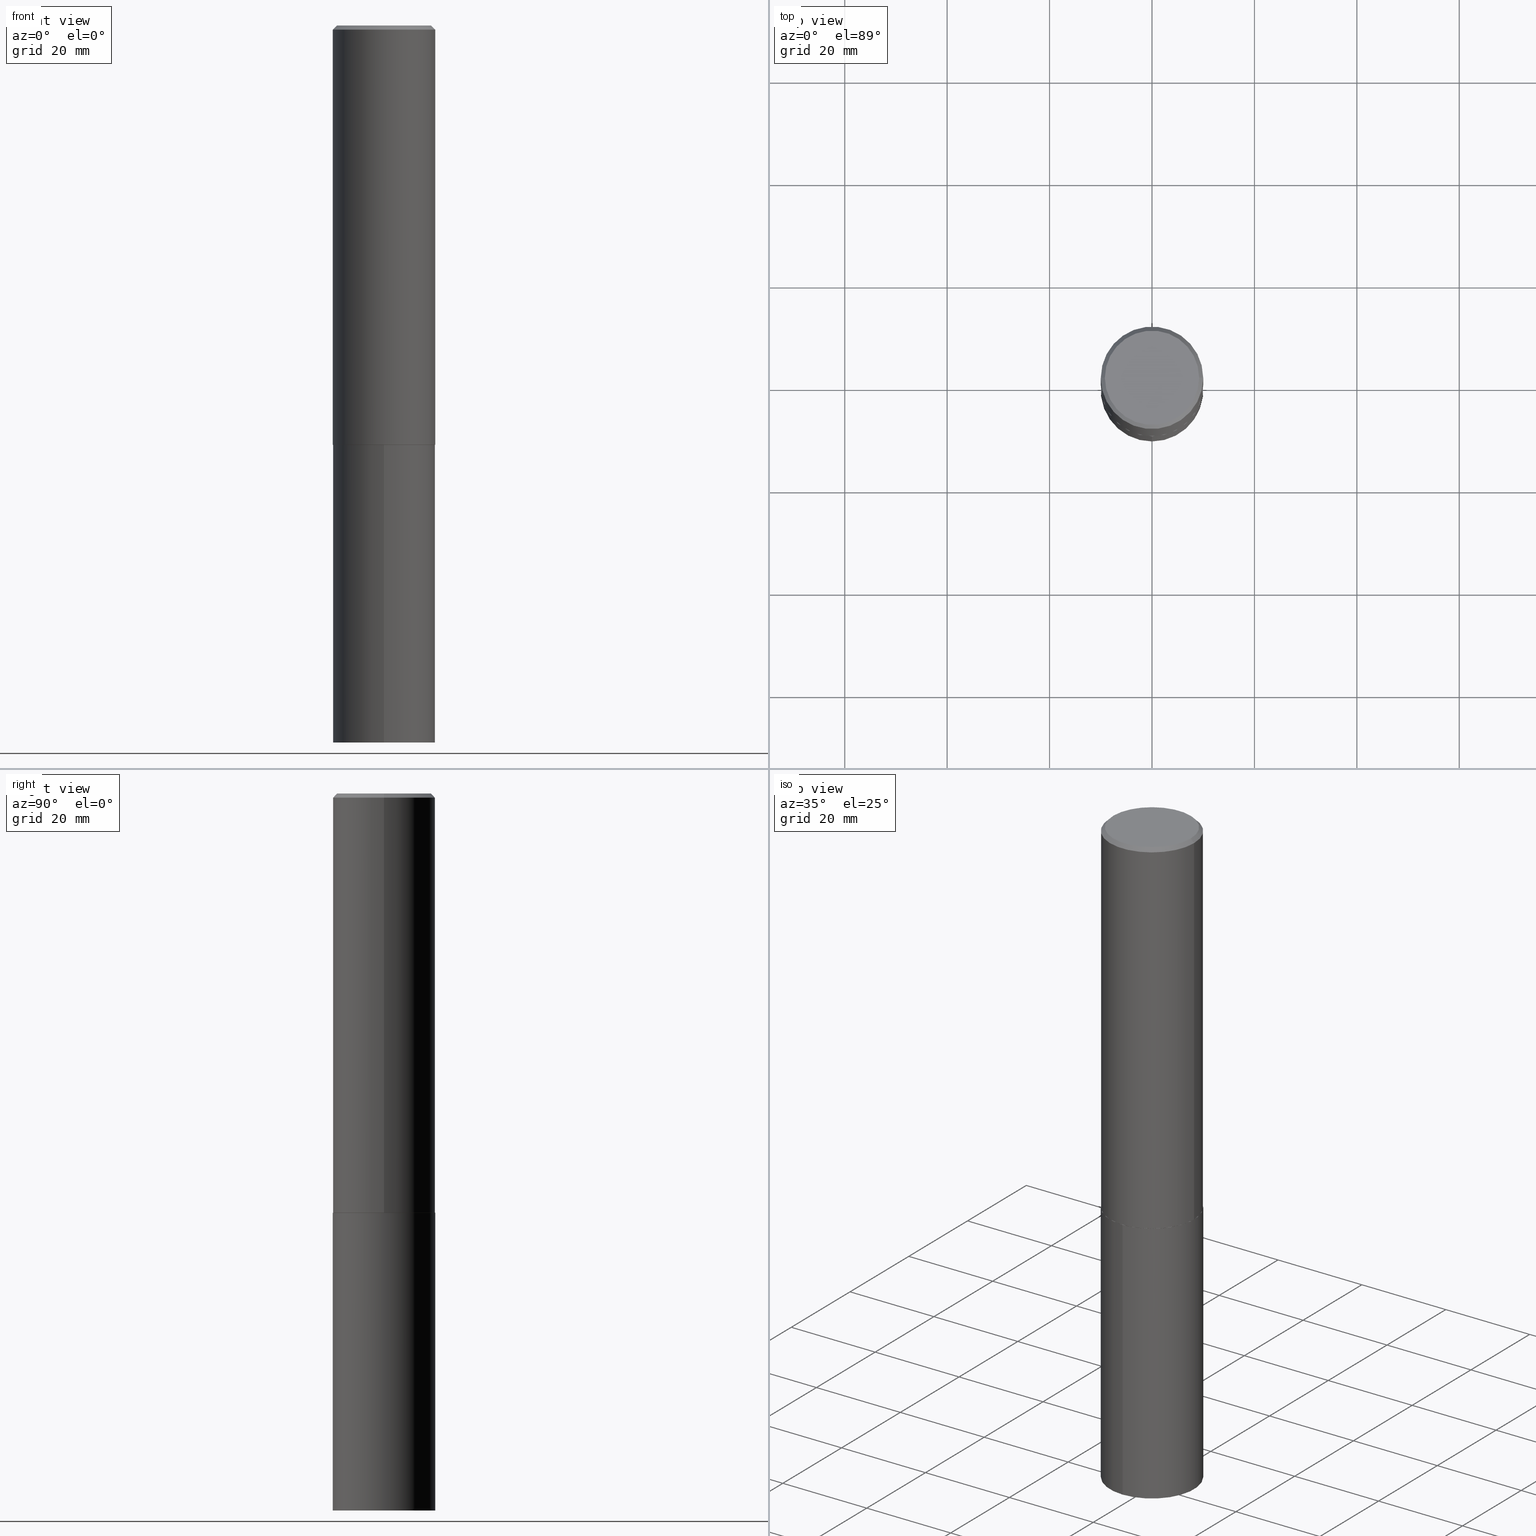
[diagram: canonical four-view strip — front | top / right | iso, engineering-drawing reading convention]
A machine part, canonical four-view strip (front | top / right | iso — engineering-drawing reading convention). The complete STEP part file that produces these views, byte-faithful:
ISO-10303-21;
HEADER;
FILE_DESCRIPTION (( 'STEP AP203' ),
    '1' );
FILE_NAME ('67814.STEP',
    '2024-04-23T12:54:18',
    ( '' ),
    ( '' ),
    'SwSTEP 2.0',
    'SolidWorks 2023',
    '' );
FILE_SCHEMA (( 'CONFIG_CONTROL_DESIGN' ));
ENDSEC;

DATA;
#1 = CARTESIAN_POINT ( 'NONE',  ( 0.3937000000000000499, -2.810086853561501142E-15, -0.03125000000000018735 ) ) ;
#2 = CARTESIAN_POINT ( 'NONE',  ( 0.000000000000000000, 0.000000000000000000, 0.000000000000000000 ) ) ;
#3 = ORIENTED_EDGE ( 'NONE', *, *, #173, .T. ) ;
#4 = EDGE_CURVE ( 'NONE', #285, #114, #291, .T. ) ;
#5 = CONICAL_SURFACE ( 'NONE', #365, 0.3937000000000000499, 0.7853981633974447263 ) ;
#6 = LENGTH_MEASURE_WITH_UNIT ( LENGTH_MEASURE( 0.02539999999999999897 ), #58 );
#7 = EDGE_LOOP ( 'NONE', ( #201, #110, #126, #357 ) ) ;
#8 = EDGE_CURVE ( 'NONE', #124, #350, #159, .T. ) ;
#9 = FACE_OUTER_BOUND ( 'NONE', #265, .T. ) ;
#10 = AXIS2_PLACEMENT_3D ( 'NONE', #335, #279, #137 ) ;
#11 = ORIENTED_EDGE ( 'NONE', *, *, #267, .F. ) ;
#12 = DIRECTION ( 'NONE',  ( -6.982962677686265133E-15, -1.000000000000000000, 4.163344669033674845E-15 ) ) ;
#13 = ORIENTED_EDGE ( 'NONE', *, *, #346, .F. ) ;
#14 = CC_DESIGN_PERSON_AND_ORGANIZATION_ASSIGNMENT ( #88, #182, ( #232 ) ) ;
#15 = SECURITY_CLASSIFICATION_LEVEL ( 'unclassified' ) ;
#16 = ORIENTED_EDGE ( 'NONE', *, *, #132, .F. ) ;
#17 = APPROVAL_ROLE ( '' ) ;
#18 = ORIENTED_EDGE ( 'NONE', *, *, #8, .T. ) ;
#19 = CYLINDRICAL_SURFACE ( 'NONE', #80, 0.3937000000000002164 ) ;
#20 = AXIS2_PLACEMENT_3D ( 'NONE', #166, #360, #193 ) ;
#21 = DIRECTION ( 'NONE',  ( -2.445668549663379467E-29, 3.491195294813608803E-15, 1.000000000000000000 ) ) ;
#22 = DIRECTION ( 'NONE',  ( 1.000000000000000000, -6.982962677686266711E-15, 0.000000000000000000 ) ) ;
#23 = UNCERTAINTY_MEASURE_WITH_UNIT (LENGTH_MEASURE( 1.000000000000000082E-05 ), #54, 'distance_accuracy_value', 'NONE');
#24 = DIRECTION ( 'NONE',  ( -1.000000000000000000, 6.982962677686265922E-15, 0.000000000000000000 ) ) ;
#25 = DIRECTION ( 'NONE',  ( -2.445468806185136597E-29, 3.491481338843145583E-15, 1.000000000000000000 ) ) ;
#26 = CIRCLE ( 'NONE', #10, 0.3932000000000008821 ) ;
#27 = LOCAL_TIME ( 8, 54, 18.00000000000000000, #319 ) ;
#28 = CC_DESIGN_DATE_AND_TIME_ASSIGNMENT ( #297, #65, ( #91 ) ) ;
#29 = DIRECTION ( 'NONE',  ( -0.7071067811865450192, 2.468850131082230634E-15, -0.7071067811865500152 ) ) ;
#30 = EDGE_LOOP ( 'NONE', ( #270, #326, #188, #348 ) ) ;
#31 = AXIS2_PLACEMENT_3D ( 'NONE', #163, #21, #100 ) ;
#32 = CC_DESIGN_PERSON_AND_ORGANIZATION_ASSIGNMENT ( #123, #63, ( #199 ) ) ;
#33 = DIRECTION ( 'NONE',  ( 1.000000000000000000, -6.982962677686266711E-15, 4.876176775795935793E-29 ) ) ;
#34 = ORIENTED_EDGE ( 'NONE', *, *, #135, .T. ) ;
#35 = CLOSED_SHELL ( 'NONE', ( #313, #281, #296, #179, #227, #168, #162, #103 ) ) ;
#36 = ORGANIZATION ( 'UNSPECIFIED', 'UNSPECIFIED', '' ) ;
#37 = PERSON_AND_ORGANIZATION ( #354, #36 ) ;
#38 = VERTEX_POINT ( 'NONE', #322 ) ;
#39 = PERSON_AND_ORGANIZATION_ROLE ( 'classification_officer' ) ;
#40 = VERTEX_POINT ( 'NONE', #62 ) ;
#41 = DIRECTION ( 'NONE',  ( 1.000000000000000000, 0.000000000000000000, 0.000000000000000000 ) ) ;
#42 = CARTESIAN_POINT ( 'NONE',  ( 7.881256868573458543E-29, -1.125234605882368832E-14, -3.222799999999999887 ) ) ;
#43 = MECHANICAL_CONTEXT ( 'NONE', #257, 'mechanical' ) ;
#44 = LOCAL_TIME ( 8, 54, 18.00000000000000000, #85 ) ;
#45 = DIRECTION ( 'NONE',  ( -2.445468806185136597E-29, 3.491481338843145583E-15, 1.000000000000000000 ) ) ;
#46 = EDGE_CURVE ( 'NONE', #350, #285, #150, .T. ) ;
#47 = CARTESIAN_POINT ( 'NONE',  ( 0.3937000000000000499, -2.858301198043932317E-15, -0.03125000000000018735 ) ) ;
#48 = DIRECTION ( 'NONE',  ( 1.000000000000000000, -6.982962677686268288E-15, 0.000000000000000000 ) ) ;
#49 = CIRCLE ( 'NONE', #264, 0.3937000000000000499 ) ;
#50 = LINE ( 'NONE', #99, #122 ) ;
#51 = DIRECTION ( 'NONE',  ( 0.7071067811852919105, -2.468850131069105172E-15, 0.7071067811878031240 ) ) ;
#52 = ADVANCED_FACE ( 'NONE', ( #353 ), #268, .T. ) ;
#53 = CARTESIAN_POINT ( 'NONE',  ( 7.881256868573458543E-29, -1.125234605882368832E-14, -3.222799999999999887 ) ) ;
#54 =( CONVERSION_BASED_UNIT ( 'INCH', #6 ) LENGTH_UNIT ( ) NAMED_UNIT ( #287 ) );
#55 = VECTOR ( 'NONE', #57, 39.37007874015748143 ) ;
#56 = CC_DESIGN_PERSON_AND_ORGANIZATION_ASSIGNMENT ( #37, #119, ( #323 ) ) ;
#57 = DIRECTION ( 'NONE',  ( -2.445668549663379467E-29, 3.491195294813608409E-15, 1.000000000000000000 ) ) ;
#58 =( LENGTH_UNIT ( ) NAMED_UNIT ( * ) SI_UNIT ( $, .METRE. ) );
#59 = EDGE_CURVE ( 'NONE', #350, #118, #156, .T. ) ;
#60 = AXIS2_PLACEMENT_3D ( 'NONE', #75, #244, #48 ) ;
#61 = DIRECTION ( 'NONE',  ( -2.445668549663379467E-29, 3.491195294813608409E-15, 1.000000000000000000 ) ) ;
#62 = CARTESIAN_POINT ( 'NONE',  ( 0.3932000000000008821, -1.399804698368993800E-14, -3.222800000000000331 ) ) ;
#63 = PERSON_AND_ORGANIZATION_ROLE ( 'creator' ) ;
#64 = DIRECTION ( 'NONE',  ( -2.445468806185136597E-29, 3.491481338843145583E-15, 1.000000000000000000 ) ) ;
#65 = DATE_TIME_ROLE ( 'classification_date' ) ;
#66 = VERTEX_POINT ( 'NONE', #154 ) ;
#67 = PERSON_AND_ORGANIZATION ( #354, #36 ) ;
#68 = VERTEX_POINT ( 'NONE', #328 ) ;
#69 = ADVANCED_FACE ( 'NONE', ( #187 ), #190, .T. ) ;
#70 = AXIS2_PLACEMENT_3D ( 'NONE', #301, #249, #251 ) ;
#71 = ORIENTED_EDGE ( 'NONE', *, *, #111, .F. ) ;
#72 = DIRECTION ( 'NONE',  ( 6.982962677686265922E-15, 1.000000000000000000, -3.491195294813608409E-15 ) ) ;
#73 = CARTESIAN_POINT ( 'NONE',  ( 7.880034134170364621E-29, -1.125060031815426445E-14, -3.222299999999999276 ) ) ;
#74 = AXIS2_PLACEMENT_3D ( 'NONE', #198, #61, #139 ) ;
#75 = CARTESIAN_POINT ( 'NONE',  ( 7.881256868573459664E-29, -1.125234605882368990E-14, -3.222800000000000331 ) ) ;
#76 = CARTESIAN_POINT ( 'NONE',  ( -0.3624500000000000499, 2.585529218446811143E-15, 4.818985154626951724E-18 ) ) ;
#77 = FACE_OUTER_BOUND ( 'NONE', #109, .T. ) ;
#78 = CARTESIAN_POINT ( 'NONE',  ( 7.642090019328597407E-31, -1.091087918388489527E-16, -0.03125000000000018735 ) ) ;
#79 = CLOSED_SHELL ( 'NONE', ( #69, #320, #52, #186 ) ) ;
#80 = AXIS2_PLACEMENT_3D ( 'NONE', #336, #127, #247 ) ;
#81 = ORIENTED_EDGE ( 'NONE', *, *, #46, .T. ) ;
#82 = DIRECTION ( 'NONE',  ( -2.445468806185136597E-29, 3.491481338843145583E-15, 1.000000000000000000 ) ) ;
#83 = APPROVAL_PERSON_ORGANIZATION ( #153, #302, #17 ) ;
#84 = LINE ( 'NONE', #317, #170 ) ;
#85 = COORDINATED_UNIVERSAL_TIME_OFFSET ( 5, 0, .BEHIND. ) ;
#86 = ORIENTED_EDGE ( 'NONE', *, *, #273, .F. ) ;
#87 = EDGE_CURVE ( 'NONE', #118, #114, #280, .T. ) ;
#88 = PERSON_AND_ORGANIZATION ( #354, #36 ) ;
#89 = EDGE_LOOP ( 'NONE', ( #86, #106, #34, #213 ) ) ;
#90 = AXIS2_PLACEMENT_3D ( 'NONE', #53, #277, #72 ) ;
#91 = SECURITY_CLASSIFICATION ( '', '', #15 ) ;
#92 = CALENDAR_DATE ( 2024, 23, 4 ) ;
#93 = EDGE_LOOP ( 'NONE', ( #189, #71 ) ) ;
#94 = COORDINATED_UNIVERSAL_TIME_OFFSET ( 5, 0, .BEHIND. ) ;
#95 = CC_DESIGN_DATE_AND_TIME_ASSIGNMENT ( #151, #149, ( #199 ) ) ;
#96 = ORIENTED_EDGE ( 'NONE', *, *, #111, .T. ) ;
#97 = ORIENTED_EDGE ( 'NONE', *, *, #161, .T. ) ;
#98 = VECTOR ( 'NONE', #134, 39.37007874015748143 ) ;
#99 = CARTESIAN_POINT ( 'NONE',  ( 0.3937000000000003830, -1.399979272435935082E-14, -3.222299999999999276 ) ) ;
#100 = DIRECTION ( 'NONE',  ( -6.982962677686265133E-15, -1.000000000000000000, 2.775563112689116301E-15 ) ) ;
#101 = DIRECTION ( 'NONE',  ( -1.000000000000000000, 6.982962677686265922E-15, -4.876176775795935793E-29 ) ) ;
#102 = DIRECTION ( 'NONE',  ( 2.445468806185136597E-29, -3.491481338843145583E-15, -1.000000000000000000 ) ) ;
#103 = ADVANCED_FACE ( 'NONE', ( #77 ), #338, .F. ) ;
#104 = CARTESIAN_POINT ( 'NONE',  ( -1.178467787315321927E-46, 1.682539673960461744E-32, 4.818985154644842843E-18 ) ) ;
#105 = DIRECTION ( 'NONE',  ( -2.445468806185136597E-29, 3.491481338843145583E-15, 1.000000000000000000 ) ) ;
#106 = ORIENTED_EDGE ( 'NONE', *, *, #222, .T. ) ;
#107 = DIRECTION ( 'NONE',  ( -2.445468806185136597E-29, 3.491481338843145583E-15, 1.000000000000000000 ) ) ;
#108 = VECTOR ( 'NONE', #332, 39.37007874015748143 ) ;
#109 = EDGE_LOOP ( 'NONE', ( #261, #271 ) ) ;
#110 = ORIENTED_EDGE ( 'NONE', *, *, #273, .T. ) ;
#111 = EDGE_CURVE ( 'NONE', #124, #40, #26, .T. ) ;
#112 = PLANE ( 'NONE',  #74 ) ;
#113 =( NAMED_UNIT ( * ) SI_UNIT ( $, .STERADIAN. ) SOLID_ANGLE_UNIT ( ) );
#114 = VERTEX_POINT ( 'NONE', #47 ) ;
#115 = CIRCLE ( 'NONE', #31, 0.3937000000000000499 ) ;
#116 = CC_DESIGN_PERSON_AND_ORGANIZATION_ASSIGNMENT ( #274, #39, ( #91 ) ) ;
#117 = ORIENTED_EDGE ( 'NONE', *, *, #205, .T. ) ;
#118 = VERTEX_POINT ( 'NONE', #195 ) ;
#119 = PERSON_AND_ORGANIZATION_ROLE ( 'design_owner' ) ;
#120 = PRODUCT_DEFINITION_SHAPE ( 'NONE', 'NONE',  #199 ) ;
#121 = VERTEX_POINT ( 'NONE', #76 ) ;
#122 = VECTOR ( 'NONE', #51, 39.37007874015748143 ) ;
#123 = PERSON_AND_ORGANIZATION ( #354, #36 ) ;
#124 = VERTEX_POINT ( 'NONE', #160 ) ;
#125 = CALENDAR_DATE ( 2024, 23, 4 ) ;
#126 = ORIENTED_EDGE ( 'NONE', *, *, #307, .F. ) ;
#127 = DIRECTION ( 'NONE',  ( -2.445468806185136597E-29, 3.491481338843145583E-15, 1.000000000000000000 ) ) ;
#128 = AXIS2_PLACEMENT_3D ( 'NONE', #298, #45, #214 ) ;
#129 = CIRCLE ( 'NONE', #340, 0.3937000000000000499 ) ;
#130 = CC_DESIGN_APPROVAL ( #363, ( #91 ) ) ;
#131 = DIRECTION ( 'NONE',  ( 1.000000000000000000, -6.982962677686265922E-15, 0.000000000000000000 ) ) ;
#132 = EDGE_CURVE ( 'NONE', #68, #121, #220, .T. ) ;
#133 = CARTESIAN_POINT ( 'NONE',  ( 2.797406750687620888E-15, 0.3936999999999807875, -5.511800000000000921 ) ) ;
#134 = DIRECTION ( 'NONE',  ( -2.445668549663379467E-29, 3.491195294813608409E-15, 1.000000000000000000 ) ) ;
#135 = EDGE_CURVE ( 'NONE', #234, #66, #246, .T. ) ;
#136 = AXIS2_PLACEMENT_3D ( 'NONE', #169, #25, #131 ) ;
#137 = DIRECTION ( 'NONE',  ( 1.000000000000000000, -6.982962677686268288E-15, 0.000000000000000000 ) ) ;
#138 = FACE_OUTER_BOUND ( 'NONE', #184, .T. ) ;
#139 = DIRECTION ( 'NONE',  ( -6.982962677686265922E-15, -1.000000000000000000, 3.491195294813608409E-15 ) ) ;
#140 = DIRECTION ( 'NONE',  ( 1.000000000000000000, -6.982962677686266711E-15, 0.000000000000000000 ) ) ;
#141 = AXIS2_PLACEMENT_3D ( 'NONE', #236, #64, #152 ) ;
#142 = ORIENTED_EDGE ( 'NONE', *, *, #222, .F. ) ;
#143 = CARTESIAN_POINT ( 'NONE',  ( 2.797406750687592884E-15, 0.3936999999999887812, -3.222800000000001663 ) ) ;
#144 = DIRECTION ( 'NONE',  ( 0.7071067811865450192, -7.319954787623246579E-15, -0.7071067811865500152 ) ) ;
#145 = DIRECTION ( 'NONE',  ( 0.000000000000000000, 0.000000000000000000, 1.000000000000000000 ) ) ;
#146 = ORIENTED_EDGE ( 'NONE', *, *, #59, .F. ) ;
#147 = MANIFOLD_SOLID_BREP ( 'Body-Move/Copy2[1]', #79 ) ;
#148 = CC_DESIGN_APPROVAL ( #237, ( #232 ) ) ;
#149 = DATE_TIME_ROLE ( 'creation_date' ) ;
#150 = LINE ( 'NONE', #208, #324 ) ;
#151 = DATE_AND_TIME ( #125, #316 ) ;
#152 = DIRECTION ( 'NONE',  ( 1.000000000000000000, -6.982962677686266711E-15, 0.000000000000000000 ) ) ;
#153 = PERSON_AND_ORGANIZATION ( #354, #36 ) ;
#154 = CARTESIAN_POINT ( 'NONE',  ( -2.749192406205004330E-15, -0.3937000000000113187, -3.222799999999998111 ) ) ;
#155 = EDGE_CURVE ( 'NONE', #40, #118, #50, .T. ) ;
#156 = CIRCLE ( 'NONE', #141, 0.3937000000000003830 ) ;
#157 = LOCAL_TIME ( 8, 54, 18.00000000000000000, #94 ) ;
#158 = DATE_AND_TIME ( #349, #44 ) ;
#159 = LINE ( 'NONE', #275, #108 ) ;
#160 = CARTESIAN_POINT ( 'NONE',  ( -0.3932000000000008821, -8.455842794640857709E-15, -3.222800000000000331 ) ) ;
#161 = EDGE_CURVE ( 'NONE', #118, #350, #230, .T. ) ;
#162 = ADVANCED_FACE ( 'NONE', ( #364 ), #310, .T. ) ;
#163 = CARTESIAN_POINT ( 'NONE',  ( 1.347939217875293275E-28, -1.924369208865203998E-14, -5.511800000000000033 ) ) ;
#164 = CIRCLE ( 'NONE', #136, 0.3937000000000000499 ) ;
#165 = CC_DESIGN_SECURITY_CLASSIFICATION ( #91, ( #232 ) ) ;
#166 = CARTESIAN_POINT ( 'NONE',  ( 7.880034134170364621E-29, -1.125060031815426445E-14, -3.222299999999999276 ) ) ;
#167 = FACE_OUTER_BOUND ( 'NONE', #93, .T. ) ;
#168 = ADVANCED_FACE ( 'NONE', ( #362 ), #19, .T. ) ;
#169 = CARTESIAN_POINT ( 'NONE',  ( 7.642090019328597407E-31, -1.091087918388489527E-16, -0.03125000000000018735 ) ) ;
#170 = VECTOR ( 'NONE', #29, 39.37007874015748143 ) ;
#171 = DIRECTION ( 'NONE',  ( -2.445668549663379467E-29, 3.491195294813608803E-15, 1.000000000000000000 ) ) ;
#172 = CARTESIAN_POINT ( 'NONE',  ( 7.881256868573458543E-29, -1.125234605882368832E-14, -3.222799999999999887 ) ) ;
#173 = EDGE_CURVE ( 'NONE', #40, #124, #331, .T. ) ;
#174 = LINE ( 'NONE', #1, #325 ) ;
#175 = DIRECTION ( 'NONE',  ( -6.982962677686265133E-15, -1.000000000000000000, 4.163344669033674845E-15 ) ) ;
#176 = CIRCLE ( 'NONE', #196, 0.3624500000000000499 ) ;
#177 =( NAMED_UNIT ( * ) PLANE_ANGLE_UNIT ( ) SI_UNIT ( $, .RADIAN. ) );
#178 = ORIENTED_EDGE ( 'NONE', *, *, #205, .F. ) ;
#179 = ADVANCED_FACE ( 'NONE', ( #167 ), #217, .F. ) ;
#180 = APPROVAL_DATE_TIME ( #210, #302 ) ;
#181 = ORIENTED_EDGE ( 'NONE', *, *, #307, .T. ) ;
#182 = PERSON_AND_ORGANIZATION_ROLE ( 'creator' ) ;
#183 = ORIENTED_EDGE ( 'NONE', *, *, #161, .F. ) ;
#184 = EDGE_LOOP ( 'NONE', ( #3, #18, #183, #358 ) ) ;
#185 = APPROVAL_STATUS ( 'not_yet_approved' ) ;
#186 = ADVANCED_FACE ( 'NONE', ( #278 ), #194, .F. ) ;
#187 = FACE_OUTER_BOUND ( 'NONE', #7, .T. ) ;
#188 = ORIENTED_EDGE ( 'NONE', *, *, #87, .T. ) ;
#189 = ORIENTED_EDGE ( 'NONE', *, *, #173, .F. ) ;
#190 = CYLINDRICAL_SURFACE ( 'NONE', #70, 0.3937000000000000499 ) ;
#191 = DIRECTION ( 'NONE',  ( -2.445468806185136597E-29, 3.491481338843145583E-15, 1.000000000000000000 ) ) ;
#192 = APPROVAL_PERSON_ORGANIZATION ( #269, #363, #321 ) ;
#193 = DIRECTION ( 'NONE',  ( 1.000000000000000000, -6.982962677686266711E-15, 0.000000000000000000 ) ) ;
#194 = PLANE ( 'NONE',  #90 ) ;
#195 = CARTESIAN_POINT ( 'NONE',  ( 0.3937000000000003830, -1.399979272435935082E-14, -3.222299999999999276 ) ) ;
#196 = AXIS2_PLACEMENT_3D ( 'NONE', #284, #107, #228 ) ;
#197 = LOCAL_TIME ( 8, 54, 18.00000000000000000, #356 ) ;
#198 = CARTESIAN_POINT ( 'NONE',  ( 1.347893496593123646E-28, -1.924434684343564878E-14, -5.511800000000000033 ) ) ;
#199 = PRODUCT_DEFINITION ( 'UNKNOWN', '', #232, #248 ) ;
#200 = CYLINDRICAL_SURFACE ( 'NONE', #286, 0.3937000000000002164 ) ;
#201 = ORIENTED_EDGE ( 'NONE', *, *, #341, .T. ) ;
#202 = FACE_OUTER_BOUND ( 'NONE', #207, .T. ) ;
#203 = ORIENTED_EDGE ( 'NONE', *, *, #355, .T. ) ;
#204 = CARTESIAN_POINT ( 'NONE',  ( 0.000000000000000000, 0.000000000000000000, 0.000000000000000000 ) ) ;
#205 = EDGE_CURVE ( 'NONE', #114, #285, #164, .T. ) ;
#206 = PERSON_AND_ORGANIZATION ( #354, #36 ) ;
#207 = EDGE_LOOP ( 'NONE', ( #97, #81, #178, #226 ) ) ;
#208 = CARTESIAN_POINT ( 'NONE',  ( -0.3937000000000002164, 2.797406750687515970E-15, -1.936584745033357576E-29 ) ) ;
#209 = CONICAL_SURFACE ( 'NONE', #333, 0.3937000000000003830, 0.7853981633956725883 ) ;
#210 = DATE_AND_TIME ( #92, #27 ) ;
#211 = DIRECTION ( 'NONE',  ( -2.445668549663379467E-29, 3.491195294813608803E-15, 1.000000000000000000 ) ) ;
#212 = DATE_AND_TIME ( #289, #157 ) ;
#213 = ORIENTED_EDGE ( 'NONE', *, *, #355, .F. ) ;
#214 = DIRECTION ( 'NONE',  ( 1.000000000000000000, -6.982962677686265922E-15, 0.000000000000000000 ) ) ;
#215 = PRODUCT_RELATED_PRODUCT_CATEGORY ( 'detail', '', ( #323 ) ) ;
#216 = CIRCLE ( 'NONE', #292, 0.3937000000000000499 ) ;
#217 = PLANE ( 'NONE',  #272 ) ;
#218 = FACE_OUTER_BOUND ( 'NONE', #241, .T. ) ;
#219 = CARTESIAN_POINT ( 'NONE',  ( 0.3937000000000002164, -2.749192406205084794E-15, 1.919750796630861012E-29 ) ) ;
#220 = CIRCLE ( 'NONE', #245, 0.3624500000000000499 ) ;
#221 = APPROVAL_PERSON_ORGANIZATION ( #67, #237, #347 ) ;
#222 = EDGE_CURVE ( 'NONE', #231, #234, #115, .T. ) ;
#223 = CARTESIAN_POINT ( 'NONE',  ( 7.881256868573459664E-29, -1.125234605882368990E-14, -3.222800000000000331 ) ) ;
#224 = DIRECTION ( 'NONE',  ( 1.000000000000000000, -6.982962677686266711E-15, 4.876156645145296500E-29 ) ) ;
#225 = CARTESIAN_POINT ( 'NONE',  ( -0.3937000000000000499, -2.882447804309040017E-15, -0.03125000000000018735 ) ) ;
#226 = ORIENTED_EDGE ( 'NONE', *, *, #87, .F. ) ;
#227 = ADVANCED_FACE ( 'NONE', ( #218 ), #239, .T. ) ;
#228 = DIRECTION ( 'NONE',  ( 1.000000000000000000, -6.982962677686266711E-15, 4.876156645145296500E-29 ) ) ;
#229 = CC_DESIGN_PERSON_AND_ORGANIZATION_ASSIGNMENT ( #206, #235, ( #232 ) ) ;
#230 = CIRCLE ( 'NONE', #20, 0.3937000000000003830 ) ;
#231 = VERTEX_POINT ( 'NONE', #133 ) ;
#232 = PRODUCT_DEFINITION_FORMATION_WITH_SPECIFIED_SOURCE ( 'ANY', '', #323, .NOT_KNOWN. ) ;
#233 = APPROVAL_STATUS ( 'not_yet_approved' ) ;
#234 = VERTEX_POINT ( 'NONE', #345 ) ;
#235 = PERSON_AND_ORGANIZATION_ROLE ( 'design_supplier' ) ;
#236 = CARTESIAN_POINT ( 'NONE',  ( 7.880034134170364621E-29, -1.125060031815426445E-14, -3.222299999999999276 ) ) ;
#237 = APPROVAL ( #185, 'UNSPECIFIED' ) ;
#238 = ORIENTED_EDGE ( 'NONE', *, *, #341, .F. ) ;
#239 = CONICAL_SURFACE ( 'NONE', #315, 0.3937000000000003830, 0.7853981633956725883 ) ;
#240 = COORDINATED_UNIVERSAL_TIME_OFFSET ( 5, 0, .BEHIND. ) ;
#241 = EDGE_LOOP ( 'NONE', ( #300, #96, #295, #146 ) ) ;
#242 = APPROVAL_DATE_TIME ( #212, #363 ) ;
#243 = ORIENTED_EDGE ( 'NONE', *, *, #288, .T. ) ;
#244 = DIRECTION ( 'NONE',  ( -2.445468806185136597E-29, 3.491481338843145583E-15, 1.000000000000000000 ) ) ;
#245 = AXIS2_PLACEMENT_3D ( 'NONE', #104, #306, #224 ) ;
#246 = LINE ( 'NONE', #303, #98 ) ;
#247 = DIRECTION ( 'NONE',  ( 1.000000000000000000, -6.982962677686266711E-15, 4.876176775795935793E-29 ) ) ;
#248 = DESIGN_CONTEXT ( 'detailed design', #318, 'design' ) ;
#249 = DIRECTION ( 'NONE',  ( -2.445668549663379467E-29, 3.491195294813608803E-15, 1.000000000000000000 ) ) ;
#250 =( GEOMETRIC_REPRESENTATION_CONTEXT ( 3 ) GLOBAL_UNCERTAINTY_ASSIGNED_CONTEXT ( ( #23 ) ) GLOBAL_UNIT_ASSIGNED_CONTEXT ( ( #54, #177, #113 ) ) REPRESENTATION_CONTEXT ( 'NONE', 'WORKASPACE' ) );
#251 = DIRECTION ( 'NONE',  ( -6.982962677686265133E-15, -1.000000000000000000, 4.163344669033674845E-15 ) ) ;
#252 = CARTESIAN_POINT ( 'NONE',  ( 7.880034134170364621E-29, -1.125060031815426445E-14, -3.222299999999999276 ) ) ;
#253 = CARTESIAN_POINT ( 'NONE',  ( 1.347939217875293275E-28, -1.924369208865203998E-14, -5.511800000000000033 ) ) ;
#254 = ORIENTED_EDGE ( 'NONE', *, *, #288, .F. ) ;
#255 = DIRECTION ( 'NONE',  ( -6.982962677686265133E-15, -1.000000000000000000, 2.775563112689116301E-15 ) ) ;
#256 = EDGE_LOOP ( 'NONE', ( #181, #203 ) ) ;
#257 = APPLICATION_CONTEXT ( 'configuration controlled 3d designs of mechanical parts and assemblies' ) ;
#258 = CARTESIAN_POINT ( 'NONE',  ( -0.3937000000000003830, -8.453193567466747297E-15, -3.222299999999999276 ) ) ;
#259 = ORIENTED_EDGE ( 'NONE', *, *, #267, .T. ) ;
#260 = DIRECTION ( 'NONE',  ( 2.445468806185136597E-29, -3.491481338843145583E-15, -1.000000000000000000 ) ) ;
#261 = ORIENTED_EDGE ( 'NONE', *, *, #346, .T. ) ;
#262 = MANIFOLD_SOLID_BREP ( 'Body-Move/Copy2[2]', #35 ) ;
#263 = APPLICATION_PROTOCOL_DEFINITION ( 'international standard', 'config_control_design', 1994, #318 ) ;
#264 = AXIS2_PLACEMENT_3D ( 'NONE', #253, #314, #255 ) ;
#265 = EDGE_LOOP ( 'NONE', ( #238, #142 ) ) ;
#266 = APPROVAL_STATUS ( 'not_yet_approved' ) ;
#267 = EDGE_CURVE ( 'NONE', #68, #114, #174, .T. ) ;
#268 = CYLINDRICAL_SURFACE ( 'NONE', #304, 0.3937000000000000499 ) ;
#269 = PERSON_AND_ORGANIZATION ( #354, #36 ) ;
#270 = ORIENTED_EDGE ( 'NONE', *, *, #46, .F. ) ;
#271 = ORIENTED_EDGE ( 'NONE', *, *, #132, .T. ) ;
#272 = AXIS2_PLACEMENT_3D ( 'NONE', #223, #337, #334 ) ;
#273 = EDGE_CURVE ( 'NONE', #231, #38, #312, .T. ) ;
#274 = PERSON_AND_ORGANIZATION ( #354, #36 ) ;
#275 = CARTESIAN_POINT ( 'NONE',  ( -0.3937000000000003830, -8.453193567466747297E-15, -3.222299999999999276 ) ) ;
#276 = DIRECTION ( 'NONE',  ( -2.445468806185136877E-29, 3.491481338843145188E-15, 1.000000000000000000 ) ) ;
#277 = DIRECTION ( 'NONE',  ( 2.445668549663379467E-29, -3.491195294813608409E-15, -1.000000000000000000 ) ) ;
#278 = FACE_OUTER_BOUND ( 'NONE', #256, .T. ) ;
#279 = DIRECTION ( 'NONE',  ( -2.445468806185136597E-29, 3.491481338843145583E-15, 1.000000000000000000 ) ) ;
#280 = LINE ( 'NONE', #219, #344 ) ;
#281 = ADVANCED_FACE ( 'NONE', ( #202 ), #200, .T. ) ;
#282 = CARTESIAN_POINT ( 'NONE',  ( 7.881256868573458543E-29, -1.125234605882368832E-14, -3.222799999999999887 ) ) ;
#283 = DIRECTION ( 'NONE',  ( -6.982962677686265133E-15, -1.000000000000000000, 4.163344669033674845E-15 ) ) ;
#284 = CARTESIAN_POINT ( 'NONE',  ( -1.178467787315321927E-46, 1.682539673960461744E-32, 4.818985154644842843E-18 ) ) ;
#285 = VERTEX_POINT ( 'NONE', #225 ) ;
#286 = AXIS2_PLACEMENT_3D ( 'NONE', #2, #105, #33 ) ;
#287 = DIMENSIONAL_EXPONENTS ( 1.000000000000000000, 0.000000000000000000, 0.000000000000000000, 0.000000000000000000, 0.000000000000000000, 0.000000000000000000, 0.000000000000000000 ) ;
#288 = EDGE_CURVE ( 'NONE', #121, #285, #84, .T. ) ;
#289 = CALENDAR_DATE ( 2024, 23, 4 ) ;
#290 = ORIENTED_EDGE ( 'NONE', *, *, #4, .T. ) ;
#291 = CIRCLE ( 'NONE', #128, 0.3937000000000000499 ) ;
#292 = AXIS2_PLACEMENT_3D ( 'NONE', #172, #171, #283 ) ;
#293 = DIRECTION ( 'NONE',  ( -2.445468806185136877E-29, 3.491481338843145188E-15, 1.000000000000000000 ) ) ;
#294 = EDGE_LOOP ( 'NONE', ( #16, #259, #117, #254 ) ) ;
#295 = ORIENTED_EDGE ( 'NONE', *, *, #155, .T. ) ;
#296 = ADVANCED_FACE ( 'NONE', ( #138 ), #209, .T. ) ;
#297 = DATE_AND_TIME ( #327, #197 ) ;
#298 = CARTESIAN_POINT ( 'NONE',  ( 7.642090019328597407E-31, -1.091087918388489527E-16, -0.03125000000000018735 ) ) ;
#299 = AXIS2_PLACEMENT_3D ( 'NONE', #204, #145, #41 ) ;
#300 = ORIENTED_EDGE ( 'NONE', *, *, #8, .F. ) ;
#301 = CARTESIAN_POINT ( 'NONE',  ( 7.881256868573458543E-29, -1.125234605882368832E-14, -3.222799999999999887 ) ) ;
#302 = APPROVAL ( #233, 'UNSPECIFIED' ) ;
#303 = CARTESIAN_POINT ( 'NONE',  ( -2.749192406205004330E-15, -0.3937000000000113187, -3.222799999999998111 ) ) ;
#304 = AXIS2_PLACEMENT_3D ( 'NONE', #42, #211, #12 ) ;
#305 = CARTESIAN_POINT ( 'NONE',  ( 7.642090019328597407E-31, -1.091087918388489527E-16, -0.03125000000000018735 ) ) ;
#306 = DIRECTION ( 'NONE',  ( -2.445468806185136597E-29, 3.491481338843145583E-15, 1.000000000000000000 ) ) ;
#307 = EDGE_CURVE ( 'NONE', #66, #38, #216, .T. ) ;
#308 = ADVANCED_BREP_SHAPE_REPRESENTATION ( '67814', ( #147, #262, #299 ), #250 ) ;
#309 = DIRECTION ( 'NONE',  ( -2.445668549663379467E-29, 3.491195294813608803E-15, 1.000000000000000000 ) ) ;
#310 = CONICAL_SURFACE ( 'NONE', #359, 0.3937000000000000499, 0.7853981633974447263 ) ;
#311 = CC_DESIGN_APPROVAL ( #302, ( #199 ) ) ;
#312 = LINE ( 'NONE', #143, #55 ) ;
#313 = ADVANCED_FACE ( 'NONE', ( #339 ), #5, .T. ) ;
#314 = DIRECTION ( 'NONE',  ( -2.445668549663379467E-29, 3.491195294813608803E-15, 1.000000000000000000 ) ) ;
#315 = AXIS2_PLACEMENT_3D ( 'NONE', #73, #191, #22 ) ;
#316 = LOCAL_TIME ( 8, 54, 18.00000000000000000, #240 ) ;
#317 = CARTESIAN_POINT ( 'NONE',  ( -0.3937000000000000499, 2.640083614366234510E-15, -0.03125000000000018735 ) ) ;
#318 = APPLICATION_CONTEXT ( 'configuration controlled 3d designs of mechanical parts and assemblies' ) ;
#319 = COORDINATED_UNIVERSAL_TIME_OFFSET ( 5, 0, .BEHIND. ) ;
#320 = ADVANCED_FACE ( 'NONE', ( #9 ), #112, .F. ) ;
#321 = APPROVAL_ROLE ( '' ) ;
#322 = CARTESIAN_POINT ( 'NONE',  ( 2.797406750687648893E-15, 0.3936999999999887812, -3.222800000000001663 ) ) ;
#323 = PRODUCT ( '67814', '67814', '', ( #43 ) ) ;
#324 = VECTOR ( 'NONE', #293, 39.37007874015748143 ) ;
#325 = VECTOR ( 'NONE', #144, 39.37007874015748143 ) ;
#326 = ORIENTED_EDGE ( 'NONE', *, *, #59, .T. ) ;
#327 = CALENDAR_DATE ( 2024, 23, 4 ) ;
#328 = CARTESIAN_POINT ( 'NONE',  ( 0.3624500000000000499, -2.648337176426896411E-15, 4.818985154662952747E-18 ) ) ;
#329 = SHAPE_DEFINITION_REPRESENTATION ( #120, #308 ) ;
#330 = EDGE_LOOP ( 'NONE', ( #11, #13, #243, #290 ) ) ;
#331 = CIRCLE ( 'NONE', #60, 0.3932000000000008821 ) ;
#332 = DIRECTION ( 'NONE',  ( -0.7071067811852919105, 7.493145998865816632E-15, 0.7071067811878031240 ) ) ;
#333 = AXIS2_PLACEMENT_3D ( 'NONE', #252, #82, #140 ) ;
#334 = DIRECTION ( 'NONE',  ( 1.000000000000000000, -6.982962677686265922E-15, 4.876176775795935793E-29 ) ) ;
#335 = CARTESIAN_POINT ( 'NONE',  ( 7.881256868573459664E-29, -1.125234605882368990E-14, -3.222800000000000331 ) ) ;
#336 = CARTESIAN_POINT ( 'NONE',  ( 0.000000000000000000, 0.000000000000000000, 0.000000000000000000 ) ) ;
#337 = DIRECTION ( 'NONE',  ( -2.438088387897960049E-29, 3.491481338843145188E-15, 1.000000000000000000 ) ) ;
#338 = PLANE ( 'NONE',  #352 ) ;
#339 = FACE_OUTER_BOUND ( 'NONE', #294, .T. ) ;
#340 = AXIS2_PLACEMENT_3D ( 'NONE', #282, #309, #175 ) ;
#341 = EDGE_CURVE ( 'NONE', #234, #231, #49, .T. ) ;
#342 = DIRECTION ( 'NONE',  ( -1.000000000000000000, 6.982962677686265922E-15, 0.000000000000000000 ) ) ;
#343 = APPLICATION_PROTOCOL_DEFINITION ( 'international standard', 'config_control_design', 1994, #257 ) ;
#344 = VECTOR ( 'NONE', #276, 39.37007874015748143 ) ;
#345 = CARTESIAN_POINT ( 'NONE',  ( -2.749192406204947927E-15, -0.3937000000000192568, -5.511799999999999145 ) ) ;
#346 = EDGE_CURVE ( 'NONE', #121, #68, #176, .T. ) ;
#347 = APPROVAL_ROLE ( '' ) ;
#348 = ORIENTED_EDGE ( 'NONE', *, *, #4, .F. ) ;
#349 = CALENDAR_DATE ( 2024, 23, 4 ) ;
#350 = VERTEX_POINT ( 'NONE', #258 ) ;
#351 = APPROVAL_DATE_TIME ( #158, #237 ) ;
#352 = AXIS2_PLACEMENT_3D ( 'NONE', #361, #366, #101 ) ;
#353 = FACE_OUTER_BOUND ( 'NONE', #89, .T. ) ;
#354 = PERSON ( 'UNSPECIFIED', 'UNSPECIFIED', 'UNSPECIFIED', ('UNSPECIFIED'), ('UNSPECIFIED'), ('UNSPECIFIED') ) ;
#355 = EDGE_CURVE ( 'NONE', #38, #66, #129, .T. ) ;
#356 = COORDINATED_UNIVERSAL_TIME_OFFSET ( 5, 0, .BEHIND. ) ;
#357 = ORIENTED_EDGE ( 'NONE', *, *, #135, .F. ) ;
#358 = ORIENTED_EDGE ( 'NONE', *, *, #155, .F. ) ;
#359 = AXIS2_PLACEMENT_3D ( 'NONE', #305, #102, #24 ) ;
#360 = DIRECTION ( 'NONE',  ( -2.445468806185136597E-29, 3.491481338843145583E-15, 1.000000000000000000 ) ) ;
#361 = CARTESIAN_POINT ( 'NONE',  ( -5.892338936576609633E-47, 8.412698369802308719E-33, 2.409492577322421421E-18 ) ) ;
#362 = FACE_OUTER_BOUND ( 'NONE', #30, .T. ) ;
#363 = APPROVAL ( #266, 'UNSPECIFIED' ) ;
#364 = FACE_OUTER_BOUND ( 'NONE', #330, .T. ) ;
#365 = AXIS2_PLACEMENT_3D ( 'NONE', #78, #260, #342 ) ;
#366 = DIRECTION ( 'NONE',  ( 2.438088387897960049E-29, -3.491481338843145188E-15, -1.000000000000000000 ) ) ;
ENDSEC;
END-ISO-10303-21;
